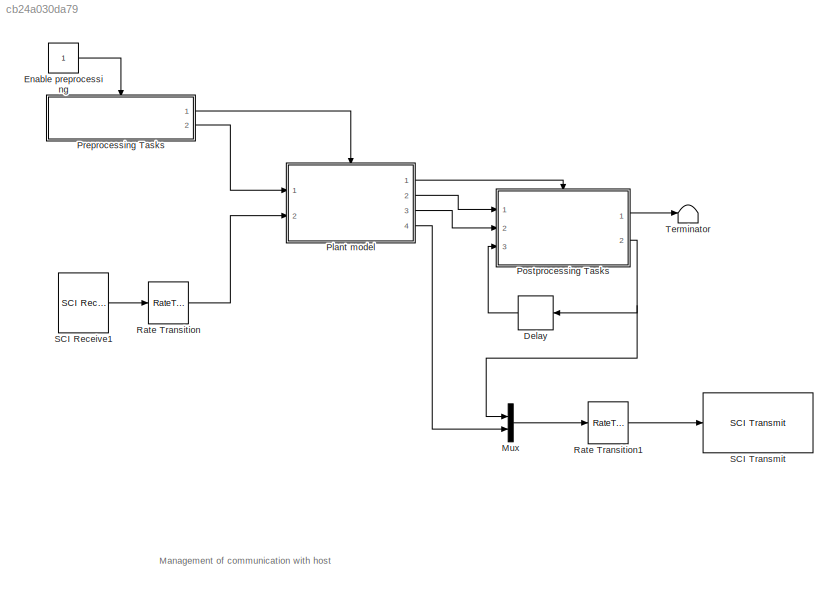
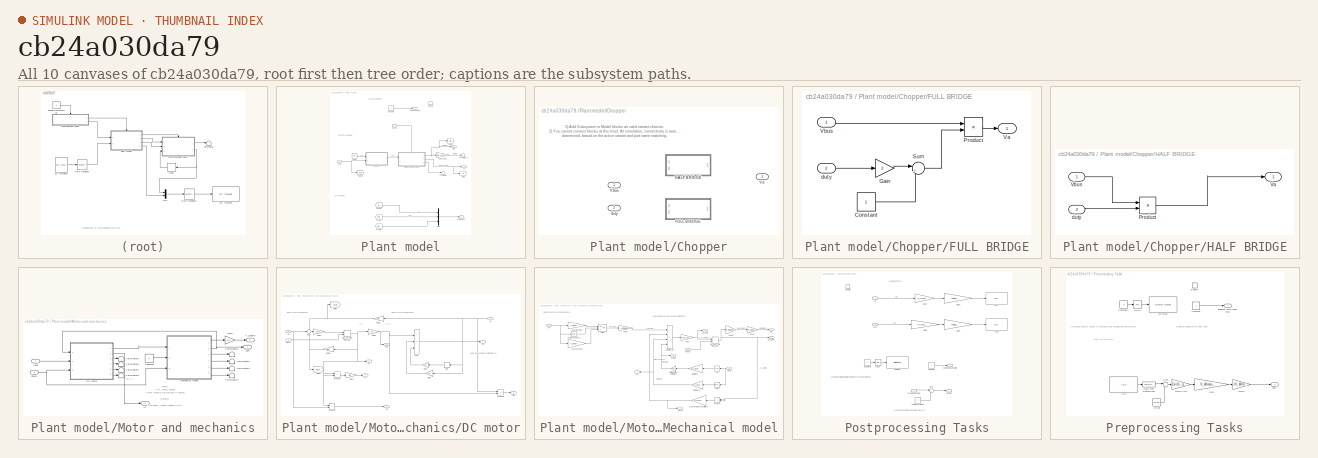
[diagram: thumbnail index - all 10 canvases of the model, root first then tree order]
MODEL slx_cb24a030da79
KIND model
CONFIG AbsTol = auto
CONFIG EnableMultiTasking = on
CONFIG FixedStep = Ts
CONFIG MaxStep = auto
CONFIG MinStep = auto
CONFIG RelTol = 1e-3
CONFIG SampleTimeConstraint = Unconstrained
CONFIG SolverName = FixedStepAuto
CONFIG StartTime = 0.0
CONFIG StopTime = Inf
BLOCK [Delay] Delay
  DelayLength = 1
  InputPortMap = u0
  NameLocation = top
  Ports = [1, 1]
BLOCK [Constant] Enable preprocessing
BLOCK [Mux] Mux
  DisplayOption = bar
  Inputs = 2
  Ports = [2, 1]
BLOCK [SubSystem] Plant model
  Ports = [2, 4, 1]
  RequestExecContextInheritance = off
  TreatAsAtomicUnit = on
BLOCK [SubSystem] Plant model/Chopper
  LabelModeActiveChoice = HALF_BRIDGE
  Ports = [2, 1]
  RequestExecContextInheritance = off
  Variant = on
  VariantControlMode = label
BLOCK [SubSystem] Plant model/Chopper/FULL BRIDGE
  Ports = [2, 1]
  RequestExecContextInheritance = off
  VariantControl = FULL_BRIDGE
BLOCK [Constant] Plant model/Chopper/FULL BRIDGE/Constant
BLOCK [Gain] Plant model/Chopper/FULL BRIDGE/Gain
  Gain = 2
BLOCK [Product] Plant model/Chopper/FULL BRIDGE/Product
  Ports = [2, 1]
BLOCK [Sum] Plant model/Chopper/FULL BRIDGE/Sum
  Inputs = |+-
  Ports = [2, 1]
BLOCK [Outport] Plant model/Chopper/FULL BRIDGE/Va
BLOCK [Inport] Plant model/Chopper/FULL BRIDGE/Vbus
BLOCK [Inport] Plant model/Chopper/FULL BRIDGE/duty
  Port = 2
BLOCK [SubSystem] Plant model/Chopper/HALF BRIDGE
  Ports = [2, 1]
  RequestExecContextInheritance = off
  VariantControl = HALF_BRIDGE
BLOCK [Product] Plant model/Chopper/HALF BRIDGE/Product
  Ports = [2, 1]
BLOCK [Outport] Plant model/Chopper/HALF BRIDGE/Va
BLOCK [Inport] Plant model/Chopper/HALF BRIDGE/Vbus
BLOCK [Inport] Plant model/Chopper/HALF BRIDGE/duty
  Port = 2
BLOCK [Outport] Plant model/Chopper/Va
BLOCK [Inport] Plant model/Chopper/Vbus
BLOCK [Inport] Plant model/Chopper/duty
  Port = 2
BLOCK [Constant] Plant model/Constant
  SampleTime = 200e-6
BLOCK [EnablePort] Plant model/Enable
  Ports = []
BLOCK [From] Plant model/From3
  GotoTag = Ia
BLOCK [From] Plant model/From4
  GotoTag = Wm
BLOCK [From] Plant model/From5
  GotoTag = duty
BLOCK [Goto] Plant model/Goto
  GotoTag = Ia
BLOCK [Goto] Plant model/Goto1
  GotoTag = duty
BLOCK [Goto] Plant model/Goto2
  GotoTag = Wm
BLOCK [Outport] Plant model/Ia
  Port = 2
BLOCK [SubSystem] Plant model/Motor and mechanics
  PortSchema = {"entries":[{"content":{"sides":[{"content":{"connectorIds":["In1"]},"type":"ConnectorPlacement.EquallySpacedRectSide","uuid":"91203ba7-e723-46f9-8594-29464252cc81"},{"content":{"connectorIds":["Out1","Out2","Out3"],"side":"RIGHT"},"type":"ConnectorPlacement.EquallySpacedRectSide","uuid":"1e5c0980-dfe5-4f81-9256-2a04590c2b7c"},{"content":{"connectorIds":["In2"],"side":"TOP"},"type":"ConnectorPlace...<+259ch>
  Ports = [2, 3]
  RequestExecContextInheritance = off
BLOCK [Constant] Plant model/Motor and mechanics/Constant
  OutDataTypeStr = single
  Value = 0
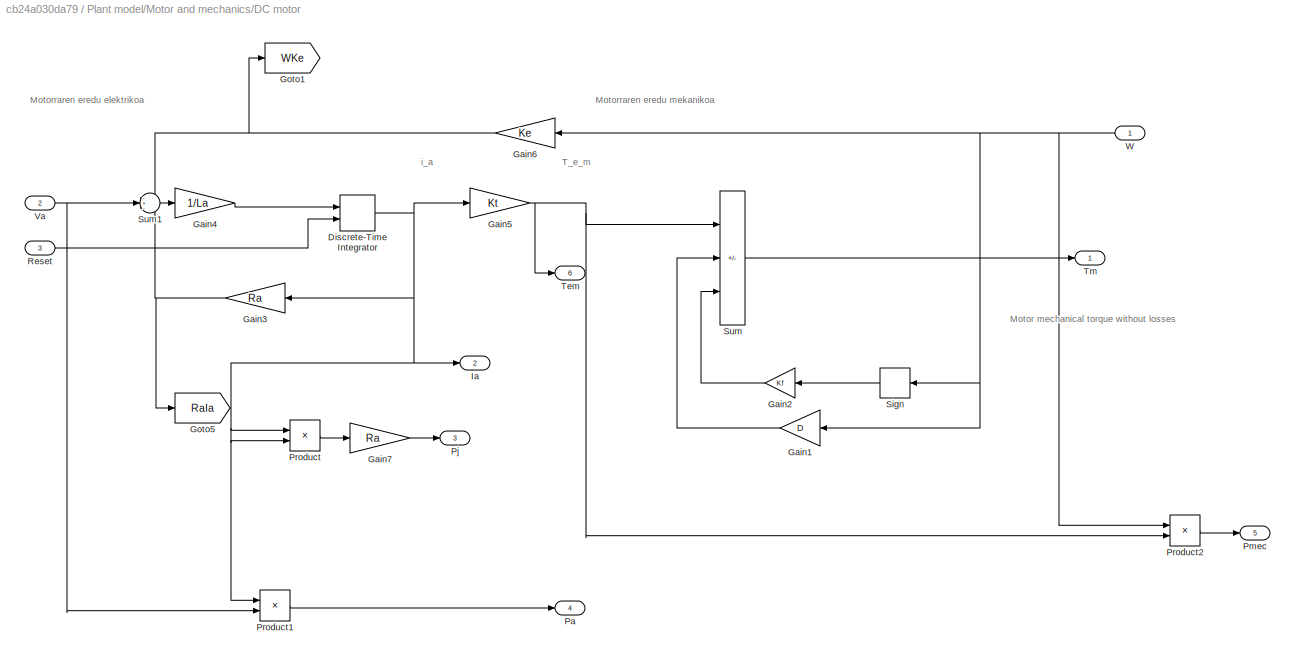
BLOCK [SubSystem] Plant model/Motor and mechanics/DC motor
  Ports = [3, 6]
  RequestExecContextInheritance = off
BLOCK [DiscreteIntegrator] Plant model/Motor and mechanics/DC motor/Discrete-Time Integrator
  ExternalReset = rising
  ICPrevOutput = DiscIntNeverNeededParam
  ICPrevScaledInput = DiscIntNeverNeededParam
  InitialConditionSetting = Auto
  Ports = [2, 1]
  SampleTime = Ts
BLOCK [Gain] Plant model/Motor and mechanics/DC motor/Gain1
  Gain = D
  NameLocation = top
BLOCK [Gain] Plant model/Motor and mechanics/DC motor/Gain2
  Gain = Kf
  NameLocation = top
BLOCK [Gain] Plant model/Motor and mechanics/DC motor/Gain3
  Gain = Ra
  NameLocation = top
BLOCK [Gain] Plant model/Motor and mechanics/DC motor/Gain4
  Gain = 1/La
BLOCK [Gain] Plant model/Motor and mechanics/DC motor/Gain5
  Gain = Kt
BLOCK [Gain] Plant model/Motor and mechanics/DC motor/Gain6
  Gain = Ke
BLOCK [Gain] Plant model/Motor and mechanics/DC motor/Gain7
  Gain = Ra
BLOCK [Goto] Plant model/Motor and mechanics/DC motor/Goto1
  GotoTag = WKe
  TagVisibility = global
BLOCK [Goto] Plant model/Motor and mechanics/DC motor/Goto5
  GotoTag = RaIa
  TagVisibility = global
BLOCK [Outport] Plant model/Motor and mechanics/DC motor/Ia
  Port = 2
  VectorParamsAs1DForOutWhenUnconnected = off
BLOCK [Outport] Plant model/Motor and mechanics/DC motor/Pa
  Port = 4
  VectorParamsAs1DForOutWhenUnconnected = off
BLOCK [Outport] Plant model/Motor and mechanics/DC motor/Pj
  Port = 3
  VectorParamsAs1DForOutWhenUnconnected = off
BLOCK [Outport] Plant model/Motor and mechanics/DC motor/Pmec
  Port = 5
  VectorParamsAs1DForOutWhenUnconnected = off
BLOCK [Product] Plant model/Motor and mechanics/DC motor/Product
  Ports = [2, 1]
BLOCK [Product] Plant model/Motor and mechanics/DC motor/Product1
  Ports = [2, 1]
BLOCK [Product] Plant model/Motor and mechanics/DC motor/Product2
  Ports = [2, 1]
BLOCK [Inport] Plant model/Motor and mechanics/DC motor/Reset
  Port = 3
BLOCK [Signum] Plant model/Motor and mechanics/DC motor/Sign
BLOCK [Sum] Plant model/Motor and mechanics/DC motor/Sum
  IconShape = rectangular
  Inputs = +--
  Ports = [3, 1]
BLOCK [Sum] Plant model/Motor and mechanics/DC motor/Sum1
  AccumDataTypeStr = single
  Inputs = -+-
  Ports = [3, 1]
BLOCK [Outport] Plant model/Motor and mechanics/DC motor/Tem
  Port = 6
  VectorParamsAs1DForOutWhenUnconnected = off
BLOCK [Outport] Plant model/Motor and mechanics/DC motor/Tm
  VectorParamsAs1DForOutWhenUnconnected = off
BLOCK [Inport] Plant model/Motor and mechanics/DC motor/Va
  Port = 2
BLOCK [Inport] Plant model/Motor and mechanics/DC motor/W
  NameLocation = top
BLOCK [Gain] Plant model/Motor and mechanics/Gain
  Gain = 3.6
BLOCK [Outport] Plant model/Motor and mechanics/Ia
  Port = 2
  VectorParamsAs1DForOutWhenUnconnected = off
BLOCK [Inport] Plant model/Motor and mechanics/Input
BLOCK [Inport] Plant model/Motor and mechanics/Input1
  Port = 2
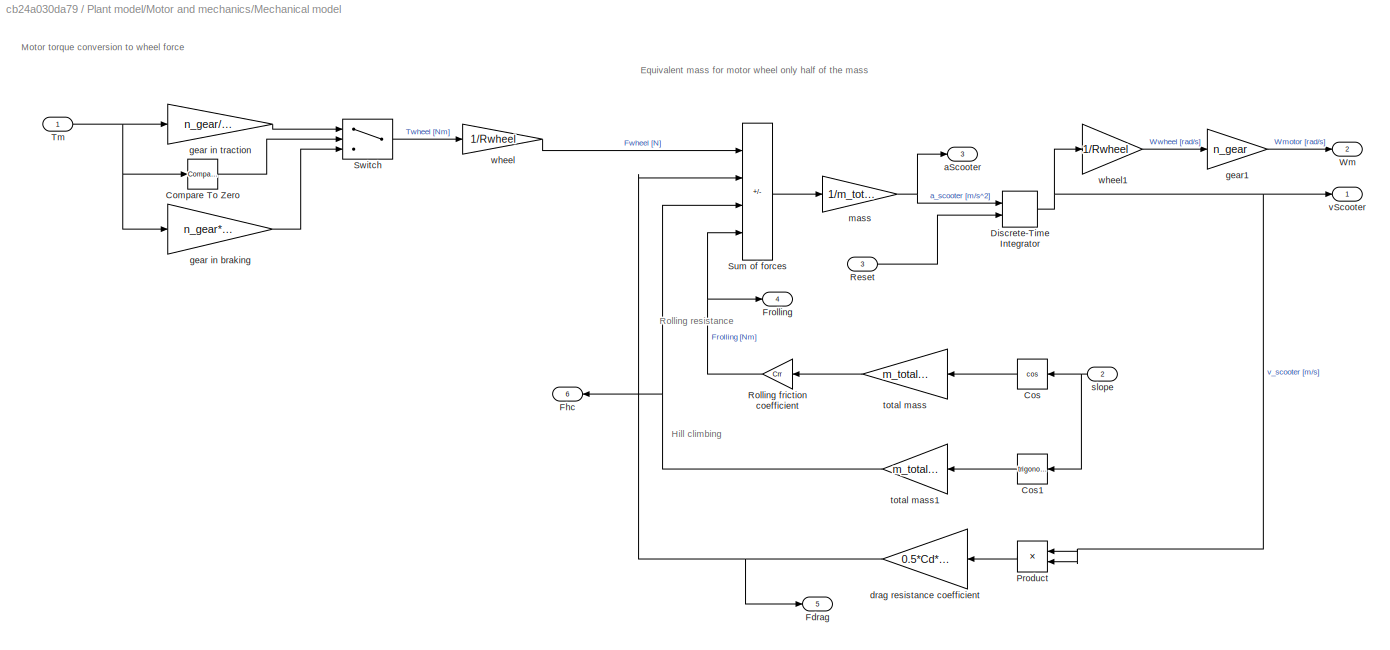
BLOCK [SubSystem] Plant model/Motor and mechanics/Mechanical model
  Ports = [3, 6]
  RequestExecContextInheritance = off
BLOCK [Reference] Plant model/Motor and mechanics/Mechanical model/Compare To Zero  REF=simulink/Logic and Bit
Operations/Compare
To Zero
  Ports = [1, 1]
  SourceBlock = simulink/Logic and Bit\nOperations/Compare\nTo Zero
  SourceProductBaseCode = SL
  SourceType = Compare To Zero
BLOCK [Trigonometry] Plant model/Motor and mechanics/Mechanical model/Cos
  NameLocation = top
  Operator = cos
  Ports = [1, 1]
BLOCK [Trigonometry] Plant model/Motor and mechanics/Mechanical model/Cos1
  NameLocation = top
  Ports = [1, 1]
BLOCK [DiscreteIntegrator] Plant model/Motor and mechanics/Mechanical model/Discrete-Time Integrator
  ExternalReset = rising
  ICPrevOutput = DiscIntNeverNeededParam
  ICPrevScaledInput = DiscIntNeverNeededParam
  InitialConditionSetting = Auto
  Ports = [2, 1]
  SampleTime = Ts
BLOCK [Outport] Plant model/Motor and mechanics/Mechanical model/Fdrag
  Port = 5
BLOCK [Outport] Plant model/Motor and mechanics/Mechanical model/Fhc
  NameLocation = top
  Port = 6
BLOCK [Outport] Plant model/Motor and mechanics/Mechanical model/Frolling
  Port = 4
BLOCK [Product] Plant model/Motor and mechanics/Mechanical model/Product
  NameLocation = top
  Ports = [2, 1]
BLOCK [Inport] Plant model/Motor and mechanics/Mechanical model/Reset
  Port = 3
BLOCK [Gain] Plant model/Motor and mechanics/Mechanical model/Rolling friction coefficient
  Gain = Crr
BLOCK [Sum] Plant model/Motor and mechanics/Mechanical model/Sum of forces
  IconShape = rectangular
  Inputs = +---
  Ports = [4, 1]
BLOCK [Switch] Plant model/Motor and mechanics/Mechanical model/Switch
  Criteria = u2 > Threshold
  InputSameDT = off
  SaturateOnIntegerOverflow = off
BLOCK [Inport] Plant model/Motor and mechanics/Mechanical model/Tm
BLOCK [Outport] Plant model/Motor and mechanics/Mechanical model/Wm
  Port = 2
BLOCK [Outport] Plant model/Motor and mechanics/Mechanical model/aScooter
  Port = 3
BLOCK [Gain] Plant model/Motor and mechanics/Mechanical model/drag resistance coefficient
  Gain = 0.5*Cd*A*rho
  NameLocation = top
BLOCK [Gain] Plant model/Motor and mechanics/Mechanical model/gear in braking
  Gain = n_gear*eff_gear
BLOCK [Gain] Plant model/Motor and mechanics/Mechanical model/gear in traction
  Gain = n_gear/eff_gear
BLOCK [Gain] Plant model/Motor and mechanics/Mechanical model/gear1
  Gain = n_gear
BLOCK [Gain] Plant model/Motor and mechanics/Mechanical model/mass
  Gain = 1/m_total/2
BLOCK [Inport] Plant model/Motor and mechanics/Mechanical model/slope
  NameLocation = top
  Port = 2
BLOCK [Gain] Plant model/Motor and mechanics/Mechanical model/total mass
  Gain = m_total/2*g
  NameLocation = top
BLOCK [Gain] Plant model/Motor and mechanics/Mechanical model/total mass1
  Gain = m_total/2*g
  NameLocation = top
BLOCK [Outport] Plant model/Motor and mechanics/Mechanical model/vScooter
BLOCK [Gain] Plant model/Motor and mechanics/Mechanical model/wheel
  Gain = 1/Rwheel
BLOCK [Gain] Plant model/Motor and mechanics/Mechanical model/wheel1
  Gain = 1/Rwheel
BLOCK [Terminator] Plant model/Motor and mechanics/Terminator1
BLOCK [Terminator] Plant model/Motor and mechanics/Terminator2
BLOCK [Terminator] Plant model/Motor and mechanics/Terminator3
BLOCK [Terminator] Plant model/Motor and mechanics/Terminator4
BLOCK [Terminator] Plant model/Motor and mechanics/Terminator5
BLOCK [Terminator] Plant model/Motor and mechanics/Terminator6
BLOCK [Terminator] Plant model/Motor and mechanics/Terminator7
BLOCK [Terminator] Plant model/Motor and mechanics/Terminator8
BLOCK [Outport] Plant model/Motor and mechanics/V_scooter
  Port = 3
  VectorParamsAs1DForOutWhenUnconnected = off
BLOCK [Outport] Plant model/Motor and mechanics/Wm
  VectorParamsAs1DForOutWhenUnconnected = off
BLOCK [Mux] Plant model/Mux
  DisplayOption = bar
  Inputs = 3
  Ports = [3, 1]
BLOCK [Inport] Plant model/Reset
  Port = 2
BLOCK [Terminator] Plant model/Terminator
BLOCK [Terminator] Plant model/Terminator1
BLOCK [Constant] Plant model/Vbus
  OutDataTypeStr = single
  Value = Vbat
BLOCK [Outport] Plant model/Wm
  Port = 3
BLOCK [Outport] Plant model/data2Host
  Port = 4
BLOCK [Inport] Plant model/duty
BLOCK [Outport] Plant model/nextTaskFlag
BLOCK [Gain] Plant model/rpm2rad//s1
  Gain = 60/(2*pi)
BLOCK [SubSystem] Postprocessing Tasks
  Ports = [3, 2, 1]
  RequestExecContextInheritance = off
  TreatAsAtomicUnit = on
BLOCK [Constant] Postprocessing Tasks/Constant
BLOCK [Constant] Postprocessing Tasks/Constant2
BLOCK [Reference] Postprocessing Tasks/DAC  REF=c2837xDlib/DAC
  Ports = [1]
  SourceBlock = c2837xDlib/DAC
  SourceProductBaseCode = TIC2000
  SourceType = codertarget.tic2000.blocks.DACWrite
BLOCK [Reference] Postprocessing Tasks/DAC1  REF=c2837xDlib/DAC
  Ports = [1]
  SourceBlock = c2837xDlib/DAC
  SourceProductBaseCode = TIC2000
  SourceType = codertarget.tic2000.blocks.DACWrite
BLOCK [EnablePort] Postprocessing Tasks/Enable
  Ports = []
BLOCK [Reference] Postprocessing Tasks/GPIO66 1  REF=c2837xDlib/Digital Output
  Ports = [1]
  SourceBlock = c2837xDlib/Digital Output
  SourceProductBaseCode = TIC2000
  SourceType = F2837x GPIO Digital Output
  UserDataPersistent = on
BLOCK [Gain] Postprocessing Tasks/Gain2
  Gain = Analog_max/V_AImax
BLOCK [Gain] Postprocessing Tasks/Gain3
  Gain = V_AImax/Ipeak
BLOCK [Gain] Postprocessing Tasks/Gain4
  Gain = Analog_max/V_AImax
BLOCK [Gain] Postprocessing Tasks/Gain5
  Gain = V_AImax/w_motor_max
BLOCK [Inport] Postprocessing Tasks/Ia
BLOCK [Logic] Postprocessing Tasks/NOT2
  AllPortsSameDT = off
  IconShape = distinctive
  Operator = NOT
  OutDataTypeStr = boolean
  Ports = [1, 1]
BLOCK [Sum] Postprocessing Tasks/Sum
  Inputs = |++
  Ports = [2, 1]
BLOCK [Inport] Postprocessing Tasks/Wm
  Port = 2
BLOCK [Outport] Postprocessing Tasks/counter
  Port = 2
BLOCK [Constant] Postprocessing Tasks/couterIncrement
  OutDataTypeStr = single
BLOCK [Outport] Postprocessing Tasks/nextTaskExecution
BLOCK [Inport] Postprocessing Tasks/previousCounter
  Port = 3
BLOCK [SubSystem] Preprocessing Tasks
  Ports = [0, 2, 1]
  RequestExecContextInheritance = off
  TreatAsAtomicUnit = on
BLOCK [Reference] Preprocessing Tasks/ADC  REF=c2802xlib/ADC
  Ports = [0, 1]
  SourceBlock = c2802xlib/ADC
  SourceProductBaseCode = TIC2000
  SourceType = ADC Type 3-5
  UserDataPersistent = on
BLOCK [Constant] Preprocessing Tasks/Constant
BLOCK [Constant] Preprocessing Tasks/Constant1
  Value = 0
BLOCK [DataTypeConversion] Preprocessing Tasks/Data Type Conversion3
  OutDataTypeStr = single
  RndMeth = Floor
  SaturateOnIntegerOverflow = off
BLOCK [EnablePort] Preprocessing Tasks/Enable
  Ports = []
BLOCK [Reference] Preprocessing Tasks/GPIO66   REF=c2837xDlib/Digital Output
  Ports = [1]
  SourceBlock = c2837xDlib/Digital Output
  SourceProductBaseCode = TIC2000
  SourceType = F2837x GPIO Digital Output
  UserDataPersistent = on
BLOCK [Gain] Preprocessing Tasks/Gain
  Gain = V_AImax/Analog_max
BLOCK [Gain] Preprocessing Tasks/Gain1
  Gain = 1/V_AImax
BLOCK [Gain] Preprocessing Tasks/GainAVG1
  Gain = Calib_Gain
  OutDataTypeStr = single
BLOCK [Logic] Preprocessing Tasks/NOT1
  AllPortsSameDT = off
  IconShape = distinctive
  Operator = NOT
  OutDataTypeStr = boolean
  Ports = [1, 1]
BLOCK [Constant] Preprocessing Tasks/Offset
  OutDataTypeStr = single
  Value = Offset
BLOCK [Sum] Preprocessing Tasks/Sum
  Inputs = |+-
  Ports = [2, 1]
BLOCK [Outport] Preprocessing Tasks/duty
  Port = 2
BLOCK [Outport] Preprocessing Tasks/enablePlantProcessing
BLOCK [RateTransition] Rate Transition
  OutPortSampleTime = Ts
BLOCK [RateTransition] Rate Transition1
  OutPortSampleTime = 1e-3
BLOCK [Reference] SCI Receive1  REF=c280xlib/SCI Receive
  Ports = [0, 1]
  SourceBlock = c280xlib/SCI Receive
  SourceProductBaseCode = TIC2000
  SourceType = C28x SCI Receive
BLOCK [Reference] SCI Transmit  REF=c280xlib/SCI Transmit
  Ports = [1]
  SourceBlock = c280xlib/SCI Transmit
  SourceProductBaseCode = TIC2000
  SourceType = C28x SCI Transmit
BLOCK [Terminator] Terminator
ANNOTATION (root): Management of communication with host
ANNOTATION Plant model: DATA TO HOST
ANNOTATION Plant model: SOLVE PLANT MODEL
ANNOTATION Plant model: TASK MANAGEMENT
ANNOTATION Plant model/Chopper: 1) Add Subsystem or Model blocks as valid variant choices. 2) You cannot connect blocks at this level. At simulation, connectivity is automatically determined, based on the active variant and port name matching.
ANNOTATION Plant model/Motor and mechanics: Inputs: - Tm: Motor torque - slope: slope of the surface in radians. Outputs: - vScooter: scooter speed in m/s - Wm: motor speed in rad/s - aScooter: scooter acceleration in rad/s^2 - Frolling: rolling resistance force in Newton - Fdrag: drag force in Newton - Fhc: hill climbing force in Newton
ANNOTATION Plant model/Motor and mechanics/DC motor: Motor mechanical torque without losses
ANNOTATION Plant model/Motor and mechanics/DC motor: Motorraren eredu elektrikoa
ANNOTATION Plant model/Motor and mechanics/DC motor: Motorraren eredu mekanikoa
ANNOTATION Plant model/Motor and mechanics/DC motor: T_e_m
ANNOTATION Plant model/Motor and mechanics/DC motor: i_a
ANNOTATION Plant model/Motor and mechanics/Mechanical model: Equivalent mass for motor wheel only half of the mass
ANNOTATION Plant model/Motor and mechanics/Mechanical model: Hill climbing
ANNOTATION Plant model/Motor and mechanics/Mechanical model: Motor torque conversion to wheel force
ANNOTATION Plant model/Motor and mechanics/Mechanical model: Rolling resistance
ANNOTATION Postprocessing Tasks: A counter is send to the host as a time reference
ANNOTATION Postprocessing Tasks: Deactivates digital output to indicate that processing has finished
ANNOTATION Postprocessing Tasks: WRITE OUTPUTS
ANNOTATION Preprocessing Tasks: Activates digital output to indicate that processing has started
ANNOTATION Preprocessing Tasks: Enables execution of next task
ANNOTATION Preprocessing Tasks: READ INPUTS
LINE Delay:1 -> Postprocessing Tasks:3
LINE Enable preprocessing:1 -> Preprocessing Tasks:enable
LINE Mux:1 -> Rate Transition1:1
LINE Plant model/Chopper/FULL BRIDGE/Constant:1 -> Plant model/Chopper/FULL BRIDGE/Sum:2
LINE Plant model/Chopper/FULL BRIDGE/Gain:1 -> Plant model/Chopper/FULL BRIDGE/Sum:1
LINE Plant model/Chopper/FULL BRIDGE/Product:1 -> Plant model/Chopper/FULL BRIDGE/Va:1
LINE Plant model/Chopper/FULL BRIDGE/Sum:1 -> Plant model/Chopper/FULL BRIDGE/Product:2
LINE Plant model/Chopper/FULL BRIDGE/Vbus:1 -> Plant model/Chopper/FULL BRIDGE/Product:1
LINE Plant model/Chopper/FULL BRIDGE/duty:1 -> Plant model/Chopper/FULL BRIDGE/Gain:1
LINE Plant model/Chopper/HALF BRIDGE/Product:1 -> Plant model/Chopper/HALF BRIDGE/Va:1
LINE Plant model/Chopper/HALF BRIDGE/Vbus:1 -> Plant model/Chopper/HALF BRIDGE/Product:1
LINE Plant model/Chopper/HALF BRIDGE/duty:1 -> Plant model/Chopper/HALF BRIDGE/Product:2
LINE Plant model/Chopper:1 -> Plant model/Motor and mechanics:1
LINE Plant model/Constant:1 -> Plant model/nextTaskFlag:1
LINE Plant model/From3:1 -> Plant model/Mux:1
LINE Plant model/From4:1 -> Plant model/Mux:3
LINE Plant model/From5:1 -> Plant model/Mux:2
LINE Plant model/Motor and mechanics/Constant:1 -> Plant model/Motor and mechanics/Mechanical model:2
NET Plant model/Motor and mechanics/DC motor/Discrete-Time Integrator:1 -> Plant model/Motor and mechanics/DC motor/Gain3:1, Plant model/Motor and mechanics/DC motor/Gain5:1, Plant model/Motor and mechanics/DC motor/Ia:1, Plant model/Motor and mechanics/DC motor/Product1:1, Plant model/Motor and mechanics/DC motor/Product:1, Plant model/Motor and mechanics/DC motor/Product:2
LINE Plant model/Motor and mechanics/DC motor/Gain1:1 -> Plant model/Motor and mechanics/DC motor/Sum:2
LINE Plant model/Motor and mechanics/DC motor/Gain2:1 -> Plant model/Motor and mechanics/DC motor/Sum:3
NET Plant model/Motor and mechanics/DC motor/Gain3:1 -> Plant model/Motor and mechanics/DC motor/Goto5:1, Plant model/Motor and mechanics/DC motor/Sum1:3
LINE Plant model/Motor and mechanics/DC motor/Gain4:1 -> Plant model/Motor and mechanics/DC motor/Discrete-Time Integrator:1
NET Plant model/Motor and mechanics/DC motor/Gain5:1 -> Plant model/Motor and mechanics/DC motor/Product2:2, Plant model/Motor and mechanics/DC motor/Sum:1, Plant model/Motor and mechanics/DC motor/Tem:1
NET Plant model/Motor and mechanics/DC motor/Gain6:1 -> Plant model/Motor and mechanics/DC motor/Goto1:1, Plant model/Motor and mechanics/DC motor/Sum1:1
LINE Plant model/Motor and mechanics/DC motor/Gain7:1 -> Plant model/Motor and mechanics/DC motor/Pj:1
LINE Plant model/Motor and mechanics/DC motor/Product1:1 -> Plant model/Motor and mechanics/DC motor/Pa:1
LINE Plant model/Motor and mechanics/DC motor/Product2:1 -> Plant model/Motor and mechanics/DC motor/Pmec:1
LINE Plant model/Motor and mechanics/DC motor/Product:1 -> Plant model/Motor and mechanics/DC motor/Gain7:1
LINE Plant model/Motor and mechanics/DC motor/Reset:1 -> Plant model/Motor and mechanics/DC motor/Discrete-Time Integrator:2
LINE Plant model/Motor and mechanics/DC motor/Sign:1 -> Plant model/Motor and mechanics/DC motor/Gain2:1
LINE Plant model/Motor and mechanics/DC motor/Sum1:1 -> Plant model/Motor and mechanics/DC motor/Gain4:1
LINE Plant model/Motor and mechanics/DC motor/Sum:1 -> Plant model/Motor and mechanics/DC motor/Tm:1
NET Plant model/Motor and mechanics/DC motor/Va:1 -> Plant model/Motor and mechanics/DC motor/Product1:2, Plant model/Motor and mechanics/DC motor/Sum1:2
NET Plant model/Motor and mechanics/DC motor/W:1 -> Plant model/Motor and mechanics/DC motor/Gain1:1, Plant model/Motor and mechanics/DC motor/Gain6:1, Plant model/Motor and mechanics/DC motor/Product2:1, Plant model/Motor and mechanics/DC motor/Sign:1
LINE Plant model/Motor and mechanics/DC motor:1 -> Plant model/Motor and mechanics/Mechanical model:1
LINE Plant model/Motor and mechanics/DC motor:2 -> Plant model/Motor and mechanics/Ia:1
LINE Plant model/Motor and mechanics/DC motor:3 -> Plant model/Motor and mechanics/Terminator5:1
LINE Plant model/Motor and mechanics/DC motor:4 -> Plant model/Motor and mechanics/Terminator6:1
LINE Plant model/Motor and mechanics/DC motor:5 -> Plant model/Motor and mechanics/Terminator7:1
LINE Plant model/Motor and mechanics/DC motor:6 -> Plant model/Motor and mechanics/Terminator8:1
LINE Plant model/Motor and mechanics/Gain:1 -> Plant model/Motor and mechanics/V_scooter:1
NET Plant model/Motor and mechanics/Input1:1 -> Plant model/Motor and mechanics/DC motor:3, Plant model/Motor and mechanics/Mechanical model:3
LINE Plant model/Motor and mechanics/Input:1 -> Plant model/Motor and mechanics/DC motor:2
LINE Plant model/Motor and mechanics/Mechanical model/Compare To Zero:1 -> Plant model/Motor and mechanics/Mechanical model/Switch:2
LINE Plant model/Motor and mechanics/Mechanical model/Cos1:1 -> Plant model/Motor and mechanics/Mechanical model/total mass1:1
LINE Plant model/Motor and mechanics/Mechanical model/Cos:1 -> Plant model/Motor and mechanics/Mechanical model/total mass:1
NET Plant model/Motor and mechanics/Mechanical model/Discrete-Time Integrator:1 -> Plant model/Motor and mechanics/Mechanical model/Product:1, Plant model/Motor and mechanics/Mechanical model/Product:2, Plant model/Motor and mechanics/Mechanical model/vScooter:1, Plant model/Motor and mechanics/Mechanical model/wheel1:1
LINE Plant model/Motor and mechanics/Mechanical model/Product:1 -> Plant model/Motor and mechanics/Mechanical model/drag resistance coefficient:1
LINE Plant model/Motor and mechanics/Mechanical model/Reset:1 -> Plant model/Motor and mechanics/Mechanical model/Discrete-Time Integrator:2
NET Plant model/Motor and mechanics/Mechanical model/Rolling friction coefficient:1 -> Plant model/Motor and mechanics/Mechanical model/Frolling:1, Plant model/Motor and mechanics/Mechanical model/Sum of forces:4
LINE Plant model/Motor and mechanics/Mechanical model/Sum of forces:1 -> Plant model/Motor and mechanics/Mechanical model/mass:1
LINE Plant model/Motor and mechanics/Mechanical model/Switch:1 -> Plant model/Motor and mechanics/Mechanical model/wheel:1
NET Plant model/Motor and mechanics/Mechanical model/Tm:1 -> Plant model/Motor and mechanics/Mechanical model/Compare To Zero:1, Plant model/Motor and mechanics/Mechanical model/gear in braking:1, Plant model/Motor and mechanics/Mechanical model/gear in traction:1
NET Plant model/Motor and mechanics/Mechanical model/drag resistance coefficient:1 -> Plant model/Motor and mechanics/Mechanical model/Fdrag:1, Plant model/Motor and mechanics/Mechanical model/Sum of forces:2
LINE Plant model/Motor and mechanics/Mechanical model/gear in braking:1 -> Plant model/Motor and mechanics/Mechanical model/Switch:3
LINE Plant model/Motor and mechanics/Mechanical model/gear in traction:1 -> Plant model/Motor and mechanics/Mechanical model/Switch:1
LINE Plant model/Motor and mechanics/Mechanical model/gear1:1 -> Plant model/Motor and mechanics/Mechanical model/Wm:1
NET Plant model/Motor and mechanics/Mechanical model/mass:1 -> Plant model/Motor and mechanics/Mechanical model/Discrete-Time Integrator:1, Plant model/Motor and mechanics/Mechanical model/aScooter:1
NET Plant model/Motor and mechanics/Mechanical model/slope:1 -> Plant model/Motor and mechanics/Mechanical model/Cos1:1, Plant model/Motor and mechanics/Mechanical model/Cos:1
NET Plant model/Motor and mechanics/Mechanical model/total mass1:1 -> Plant model/Motor and mechanics/Mechanical model/Fhc:1, Plant model/Motor and mechanics/Mechanical model/Sum of forces:3
LINE Plant model/Motor and mechanics/Mechanical model/total mass:1 -> Plant model/Motor and mechanics/Mechanical model/Rolling friction coefficient:1
LINE Plant model/Motor and mechanics/Mechanical model/wheel1:1 -> Plant model/Motor and mechanics/Mechanical model/gear1:1
LINE Plant model/Motor and mechanics/Mechanical model/wheel:1 -> Plant model/Motor and mechanics/Mechanical model/Sum of forces:1
LINE Plant model/Motor and mechanics/Mechanical model:1 -> Plant model/Motor and mechanics/Gain:1
NET Plant model/Motor and mechanics/Mechanical model:2 -> Plant model/Motor and mechanics/DC motor:1, Plant model/Motor and mechanics/Wm:1
LINE Plant model/Motor and mechanics/Mechanical model:3 -> Plant model/Motor and mechanics/Terminator1:1
LINE Plant model/Motor and mechanics/Mechanical model:4 -> Plant model/Motor and mechanics/Terminator2:1
LINE Plant model/Motor and mechanics/Mechanical model:5 -> Plant model/Motor and mechanics/Terminator3:1
LINE Plant model/Motor and mechanics/Mechanical model:6 -> Plant model/Motor and mechanics/Terminator4:1
NET Plant model/Motor and mechanics:1 -> Plant model/Goto2:1, Plant model/Wm:1, Plant model/rpm2rad//s1:1
NET Plant model/Motor and mechanics:2 -> Plant model/Goto:1, Plant model/Ia:1
LINE Plant model/Motor and mechanics:3 -> Plant model/Terminator:1
LINE Plant model/Mux:1 -> Plant model/data2Host:1
LINE Plant model/Reset:1 -> Plant model/Motor and mechanics:2
LINE Plant model/Vbus:1 -> Plant model/Chopper:1
NET Plant model/duty:1 -> Plant model/Chopper:2, Plant model/Goto1:1
LINE Plant model/rpm2rad//s1:1 -> Plant model/Terminator1:1
LINE Plant model:1 -> Postprocessing Tasks:enable
LINE Plant model:2 -> Postprocessing Tasks:1
LINE Plant model:3 -> Postprocessing Tasks:2
LINE Plant model:4 -> Mux:2
LINE Postprocessing Tasks/Constant2:1 -> Postprocessing Tasks/NOT2:1
LINE Postprocessing Tasks/Constant:1 -> Postprocessing Tasks/nextTaskExecution:1
LINE Postprocessing Tasks/Gain2:1 -> Postprocessing Tasks/DAC:1
LINE Postprocessing Tasks/Gain3:1 -> Postprocessing Tasks/Gain2:1
LINE Postprocessing Tasks/Gain4:1 -> Postprocessing Tasks/DAC1:1
LINE Postprocessing Tasks/Gain5:1 -> Postprocessing Tasks/Gain4:1
LINE Postprocessing Tasks/Ia:1 -> Postprocessing Tasks/Gain3:1
LINE Postprocessing Tasks/NOT2:1 -> Postprocessing Tasks/GPIO66 1:1
LINE Postprocessing Tasks/Sum:1 -> Postprocessing Tasks/counter:1
LINE Postprocessing Tasks/Wm:1 -> Postprocessing Tasks/Gain5:1
LINE Postprocessing Tasks/couterIncrement:1 -> Postprocessing Tasks/Sum:2
LINE Postprocessing Tasks/previousCounter:1 -> Postprocessing Tasks/Sum:1
LINE Postprocessing Tasks:1 -> Terminator:1
NET Postprocessing Tasks:2 -> Delay:1, Mux:1
LINE Preprocessing Tasks/ADC:1 -> Preprocessing Tasks/Data Type Conversion3:1
LINE Preprocessing Tasks/Constant1:1 -> Preprocessing Tasks/NOT1:1
LINE Preprocessing Tasks/Constant:1 -> Preprocessing Tasks/enablePlantProcessing:1
LINE Preprocessing Tasks/Data Type Conversion3:1 -> Preprocessing Tasks/Sum:1
LINE Preprocessing Tasks/Gain1:1 -> Preprocessing Tasks/duty:1
LINE Preprocessing Tasks/Gain:1 -> Preprocessing Tasks/Gain1:1
LINE Preprocessing Tasks/GainAVG1:1 -> Preprocessing Tasks/Gain:1
LINE Preprocessing Tasks/NOT1:1 -> Preprocessing Tasks/GPIO66 :1
LINE Preprocessing Tasks/Offset:1 -> Preprocessing Tasks/Sum:2
LINE Preprocessing Tasks/Sum:1 -> Preprocessing Tasks/GainAVG1:1
LINE Preprocessing Tasks:1 -> Plant model:enable
LINE Preprocessing Tasks:2 -> Plant model:1
LINE Rate Transition1:1 -> SCI Transmit:1
LINE Rate Transition:1 -> Plant model:2
LINE SCI Receive1:1 -> Rate Transition:1
note: NET lines group one-source signal fan-out (src -> all destinations, sorted); 1:1 wires keep LINE
